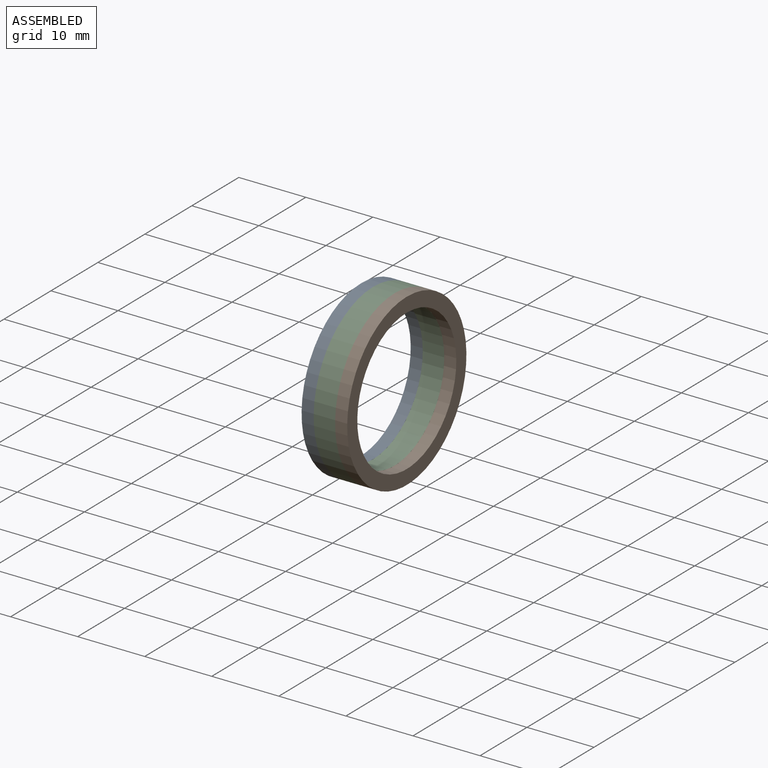
[diagram: assembled view]
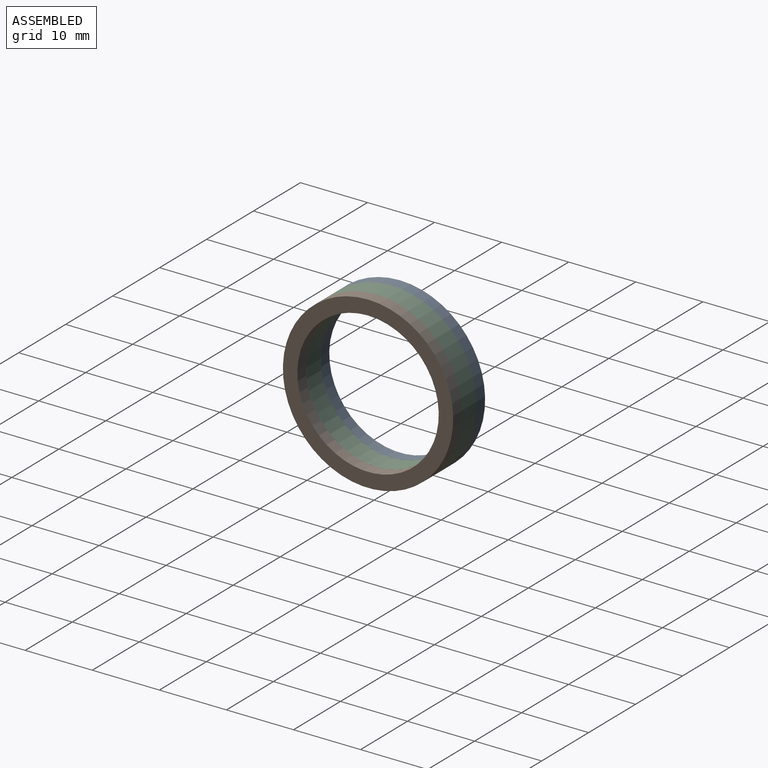
[diagram: assembled view, second angle]
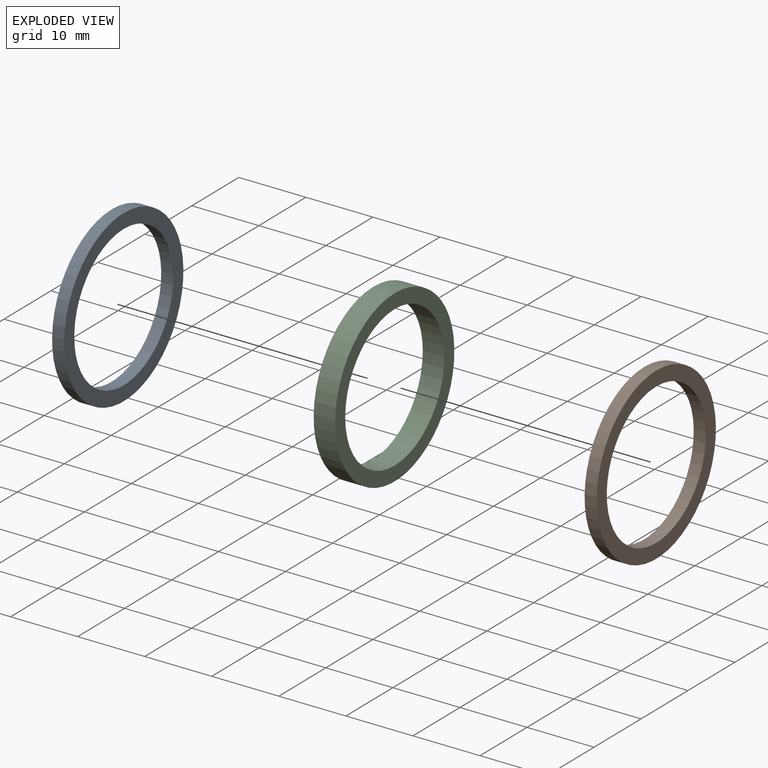
[diagram: exploded view]
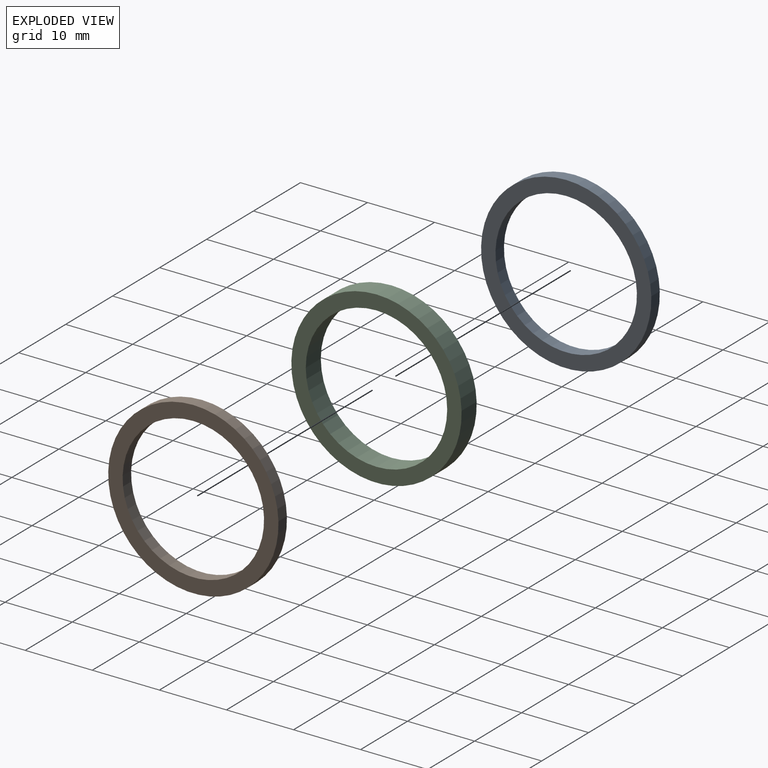
[diagram: exploded view, second angle]
ASSEMBLY  parts=3 mates=2
PART A: 4 faces, bbox 1.8x25.4x25.4 mm
  f0: plane 25.39x25.39mm, normal (-1,0,0), area 157mm2, adj f1,f3
  f1: cylinder r=10.54mm len=21.09mm, axis (-1,0,0), area 119.3mm2, adj f0,f2
  f2: plane 25.39x25.39mm, normal (1,0,0), area 157mm2, adj f1,f3
  f3: cylinder r=12.7mm len=25.39mm, axis (-1,0,0), area 143.6mm2, adj f0,f2
PART B: same geometry as A
PART C: 4 faces, bbox 3.2x25.4x25.4 mm
  f0: cylinder r=10.54mm len=21.09mm, axis (-1,0,0), area 212mm2, adj f1,f3
  f1: plane 25.39x25.39mm, normal (1,0,0), area 157mm2, adj f0,f2
  f2: cylinder r=12.7mm len=25.39mm, axis (-1,0,0), area 255.2mm2, adj f1,f3
  f3: plane 25.39x25.39mm, normal (-1,0,0), area 157mm2, adj f0,f2
PLACE A t=(-8.34,-1.98,3.48)mm
PLACE B t=(-3.34,-1.98,3.48)mm
PLACE C t=(-4.94,-1.98,3.48)mm
MATE fastened B.f1 <-> C.f0  axis (-1,0,0) through (-3.34,-1.98,3.48)mm
MATE fastened C.f0 <-> A.f1  axis (-1,0,0) through (-6.54,-1.98,3.48)mm
